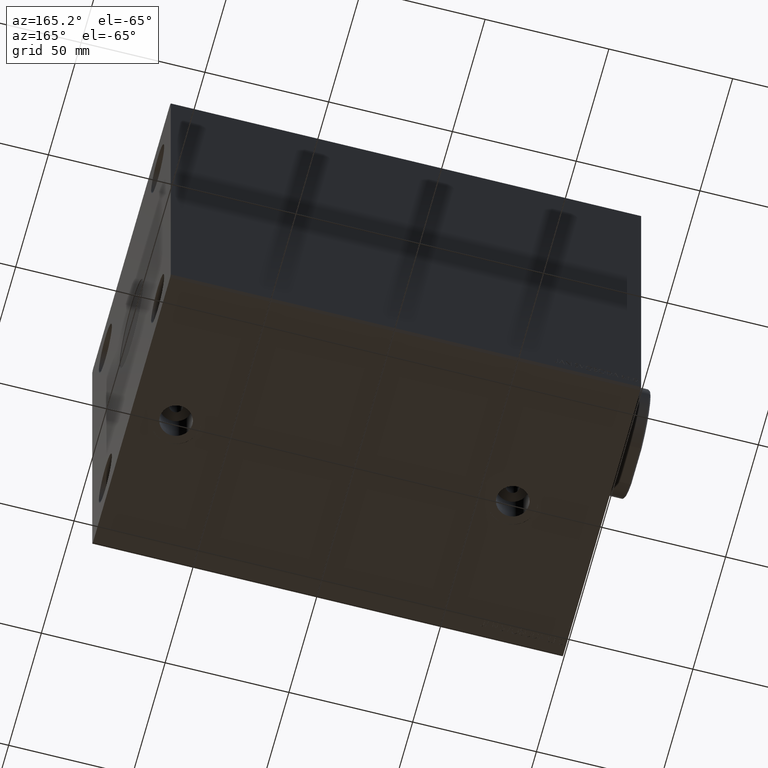
[diagram: clean part render]
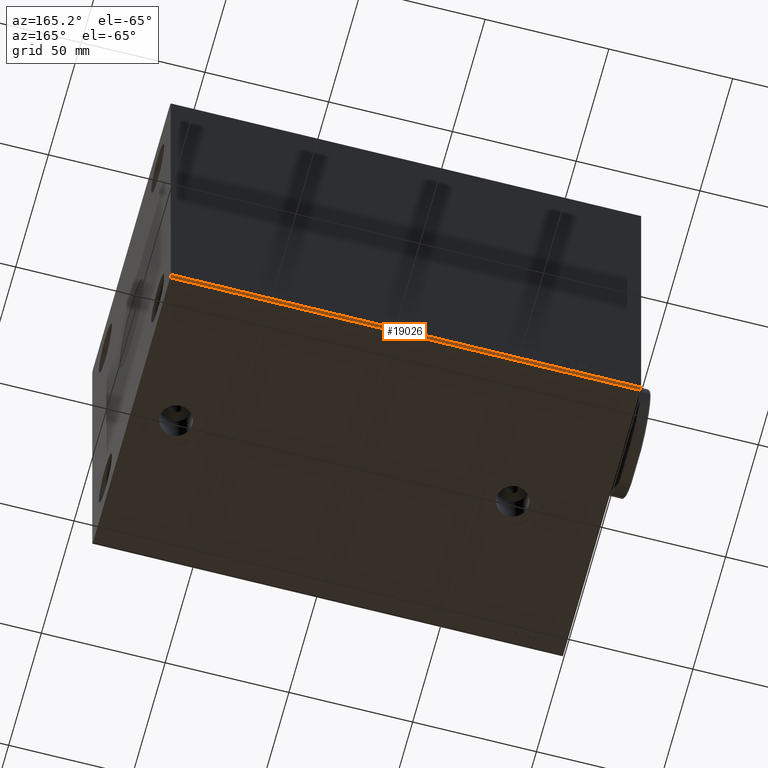
[diagram: same view with one face highlighted and labeled with its STEP entity id]
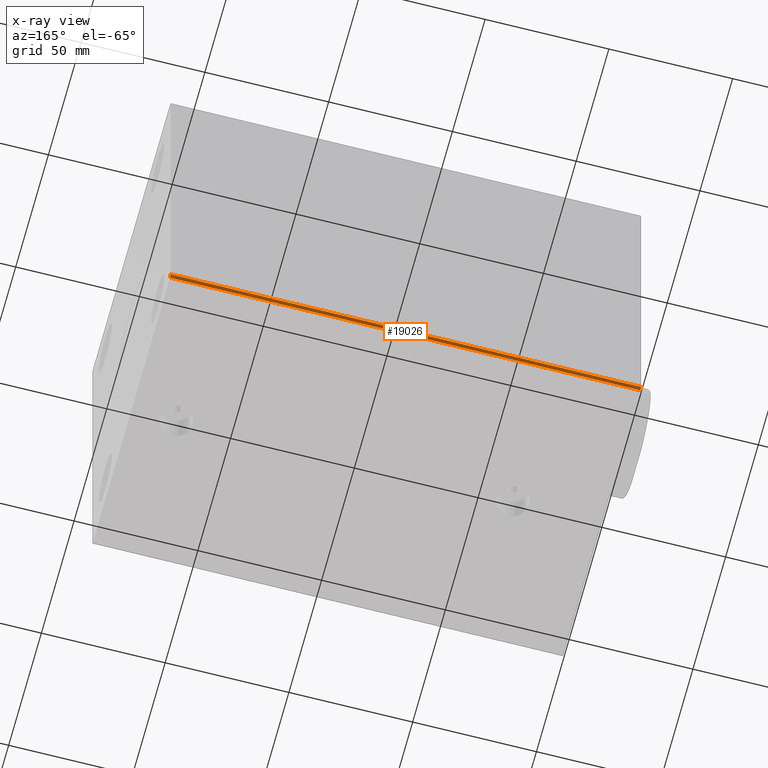
[diagram: x-ray of the same camera — body ghosted, the highlighted face saturated]
A machine part, auxiliary view. The second image highlights one B-rep face of the part: STEP entity #19026.
The next image is the same camera in x-ray: the body ghosted, the highlighted face saturated — about 0% of this face is hidden behind the body in this view.
In plain terms, the highlighted planar face has unit normal (0, -0.7071, 0.7071).
Its self-contained STEP definition (entity closure, byte-faithful):
#1724 = DIRECTION ( 'NONE',  ( -1.000000000000000000, -0.000000000000000000, -0.000000000000000000 ) ) ;
#3269 = DIRECTION ( 'NONE',  ( -1.000000000000000000, -0.000000000000000000, -0.000000000000000000 ) ) ;
#5871 = EDGE_CURVE ( 'NONE', #23623, #33343, #24437, .T. ) ;
#7756 = ORIENTED_EDGE ( 'NONE', *, *, #21504, .F. ) ;
#9555 = VECTOR ( 'NONE', #42509, 1000.000000000000114 ) ;
#10187 = LINE ( 'NONE', #30844, #21361 ) ;
#10285 = ORIENTED_EDGE ( 'NONE', *, *, #5871, .T. ) ;
#11642 = CARTESIAN_POINT ( 'NONE',  ( 190.0000000000000000, 59.00000000000000000, -80.00000000000000000 ) ) ;
#12142 = VERTEX_POINT ( 'NONE', #27071 ) ;
#16018 = LINE ( 'NONE', #39803, #18045 ) ;
#16059 = ORIENTED_EDGE ( 'NONE', *, *, #32130, .T. ) ;
#18045 = VECTOR ( 'NONE', #26239, 1000.000000000000114 ) ;
#18274 = VECTOR ( 'NONE', #1724, 1000.000000000000000 ) ;
#18737 = CARTESIAN_POINT ( 'NONE',  ( 190.0000000000000000, 60.00000000000000000, -79.00000000000000000 ) ) ;
#19026 = ADVANCED_FACE ( 'NONE', ( #35852 ), #24981, .F. ) ;
#21361 = VECTOR ( 'NONE', #3269, 1000.000000000000000 ) ;
#21504 = EDGE_CURVE ( 'NONE', #26253, #12142, #10187, .T. ) ;
#23623 = VERTEX_POINT ( 'NONE', #30815 ) ;
#24437 = LINE ( 'NONE', #31308, #18274 ) ;
#24605 = CARTESIAN_POINT ( 'NONE',  ( 0.000000000000000000, 59.00000000000000000, -80.00000000000000000 ) ) ;
#24981 = PLANE ( 'NONE',  #43412 ) ;
#25641 = DIRECTION ( 'NONE',  ( 0.000000000000000000, -0.7071067811865475727, 0.7071067811865475727 ) ) ;
#26239 = DIRECTION ( 'NONE',  ( 0.000000000000000000, 0.7071067811865474617, 0.7071067811865474617 ) ) ;
#26253 = VERTEX_POINT ( 'NONE', #18737 ) ;
#26259 = CARTESIAN_POINT ( 'NONE',  ( 0.000000000000000000, 59.00000000000000000, -80.00000000000000000 ) ) ;
#27071 = CARTESIAN_POINT ( 'NONE',  ( 0.000000000000000000, 60.00000000000000000, -79.00000000000000000 ) ) ;
#28940 = LINE ( 'NONE', #26259, #9555 ) ;
#30815 = CARTESIAN_POINT ( 'NONE',  ( 190.0000000000000000, 59.00000000000000000, -80.00000000000000000 ) ) ;
#30844 = CARTESIAN_POINT ( 'NONE',  ( 190.0000000000000000, 60.00000000000000000, -79.00000000000000000 ) ) ;
#31308 = CARTESIAN_POINT ( 'NONE',  ( 190.0000000000000000, 59.00000000000000000, -80.00000000000000000 ) ) ;
#32130 = EDGE_CURVE ( 'NONE', #33343, #12142, #28940, .T. ) ;
#33343 = VERTEX_POINT ( 'NONE', #24605 ) ;
#35192 = DIRECTION ( 'NONE',  ( 0.000000000000000000, -0.7071067811865474617, -0.7071067811865474617 ) ) ;
#35852 = FACE_OUTER_BOUND ( 'NONE', #42683, .T. ) ;
#38200 = ORIENTED_EDGE ( 'NONE', *, *, #42730, .F. ) ;
#39803 = CARTESIAN_POINT ( 'NONE',  ( 190.0000000000000000, 59.00000000000000000, -80.00000000000000000 ) ) ;
#42509 = DIRECTION ( 'NONE',  ( 0.000000000000000000, 0.7071067811865474617, 0.7071067811865474617 ) ) ;
#42683 = EDGE_LOOP ( 'NONE', ( #16059, #7756, #38200, #10285 ) ) ;
#42730 = EDGE_CURVE ( 'NONE', #23623, #26253, #16018, .T. ) ;
#43412 = AXIS2_PLACEMENT_3D ( 'NONE', #11642, #25641, #35192 ) ;